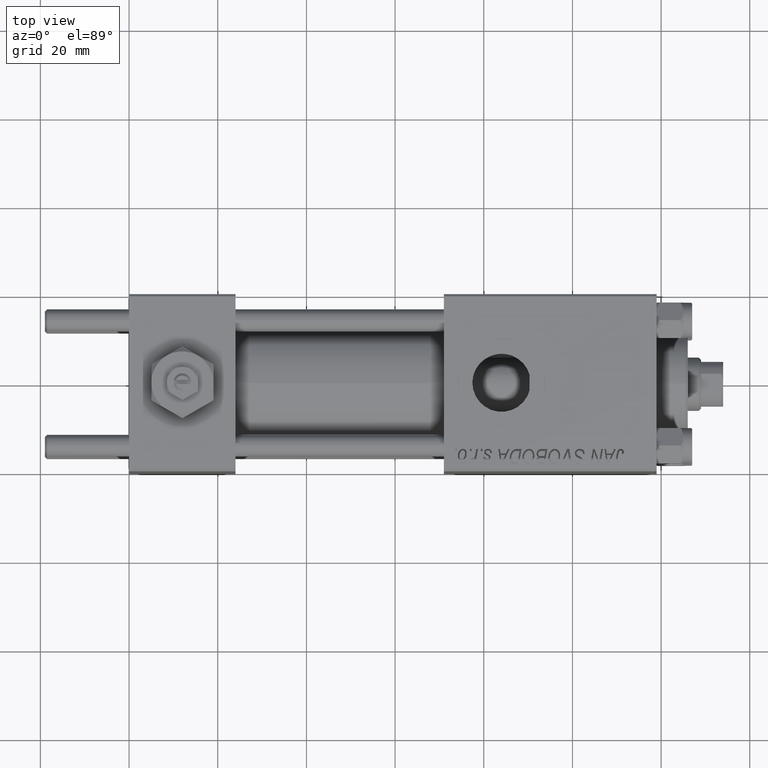
[diagram: clean part render]
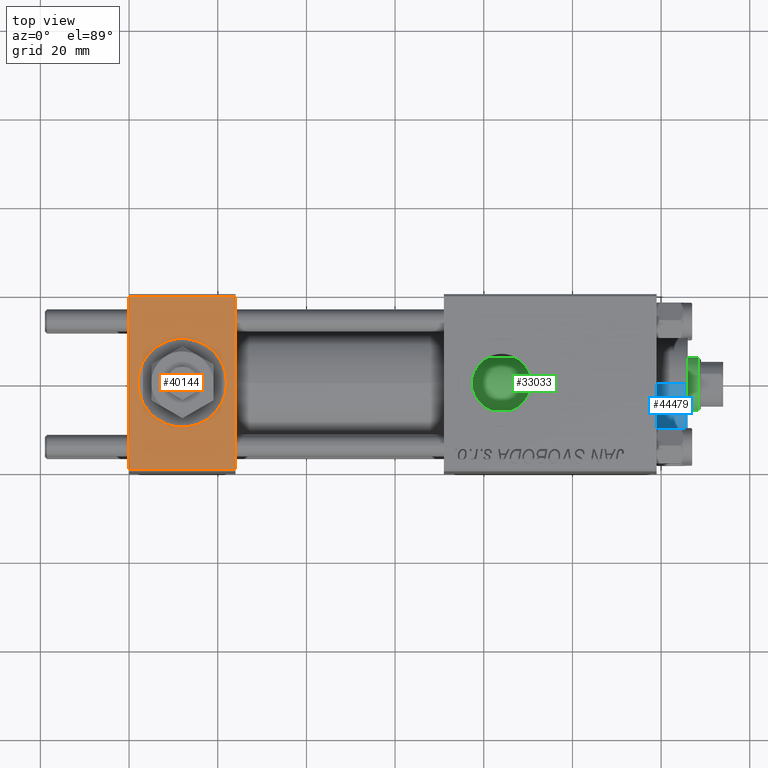
[diagram: same view with three faces highlighted in distinct colors, each labeled with its STEP entity id]
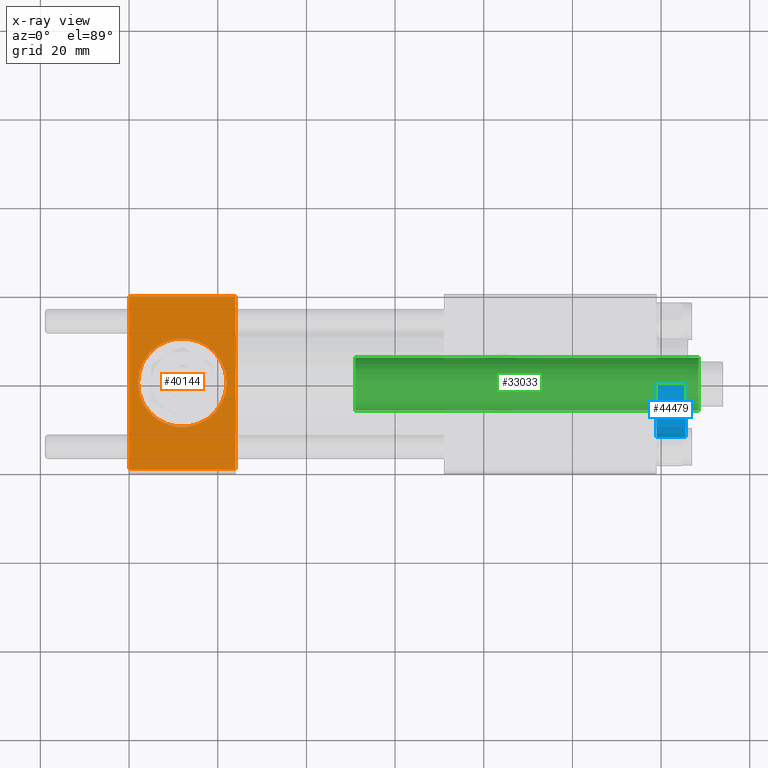
[diagram: x-ray of the same camera — body ghosted, the three highlighted faces saturated]
A machine part, top view with three faces highlighted in distinct colors.
The next image is the same camera in x-ray (body ghosted, the three faces saturated) — at least one of them is partly hidden behind the body in this view.
Their STEP definitions:

[orange] entity #40144 — the highlighted planar face has unit normal (0, 0, -1).
#170 = CARTESIAN_POINT ( 'NONE',  ( 12.00000000000000000, 1.540743955509788682E-30, 19.99999999999999645 ) ) ;
#1259 = VECTOR ( 'NONE', #7563, 1000.000000000000000 ) ;
#1360 = CARTESIAN_POINT ( 'NONE',  ( 22.00000000000000000, 1.540743955509788682E-30, 19.99999999999999645 ) ) ;
#1381 = VERTEX_POINT ( 'NONE', #15218 ) ;
#1753 = LINE ( 'NONE', #49410, #42932 ) ;
#1958 = ORIENTED_EDGE ( 'NONE', *, *, #22239, .T. ) ;
#2654 = EDGE_CURVE ( 'NONE', #40602, #40298, #23487, .T. ) ;
#4217 = CARTESIAN_POINT ( 'NONE',  ( 24.00000000000000000, 20.00000000000000000, 20.00000000000000000 ) ) ;
#5276 = CARTESIAN_POINT ( 'NONE',  ( 24.00000000000000000, -19.49999999999999289, 19.99999999999998934 ) ) ;
#5587 = EDGE_CURVE ( 'NONE', #6164, #38488, #21077, .T. ) ;
#6164 = VERTEX_POINT ( 'NONE', #1360 ) ;
#7108 = AXIS2_PLACEMENT_3D ( 'NONE', #15185, #10507, #10763 ) ;
#7563 = DIRECTION ( 'NONE',  ( 1.000000000000000000, 0.000000000000000000, 0.000000000000000000 ) ) ;
#8260 = DIRECTION ( 'NONE',  ( 0.000000000000000000, 0.000000000000000000, 1.000000000000000000 ) ) ;
#10507 = DIRECTION ( 'NONE',  ( 0.000000000000000000, 2.602085213965210149E-16, -1.000000000000000000 ) ) ;
#10763 = DIRECTION ( 'NONE',  ( 0.000000000000000000, 1.000000000000000000, 2.602085213965210149E-16 ) ) ;
#11901 = CARTESIAN_POINT ( 'NONE',  ( 12.00000000000000000, 1.540743955509788682E-30, 19.99999999999999645 ) ) ;
#13389 = AXIS2_PLACEMENT_3D ( 'NONE', #170, #23865, #43649 ) ;
#15185 = CARTESIAN_POINT ( 'NONE',  ( 24.00000000000000000, 20.00000000000000000, 20.00000000000000000 ) ) ;
#15218 = CARTESIAN_POINT ( 'NONE',  ( 0.000000000000000000, 19.50000000000000000, 20.00000000000000000 ) ) ;
#16433 = ORIENTED_EDGE ( 'NONE', *, *, #5587, .F. ) ;
#16506 = EDGE_CURVE ( 'NONE', #23597, #40298, #46110, .T. ) ;
#20220 = AXIS2_PLACEMENT_3D ( 'NONE', #11901, #8260, #27784 ) ;
#21077 = CIRCLE ( 'NONE', #20220, 9.999999999999998224 ) ;
#22226 = FACE_BOUND ( 'NONE', #44798, .T. ) ;
#22239 = EDGE_CURVE ( 'NONE', #40602, #1381, #33360, .T. ) ;
#23386 = CIRCLE ( 'NONE', #13389, 9.999999999999998224 ) ;
#23487 = LINE ( 'NONE', #4217, #33415 ) ;
#23597 = VERTEX_POINT ( 'NONE', #44004 ) ;
#23865 = DIRECTION ( 'NONE',  ( 0.000000000000000000, 0.000000000000000000, 1.000000000000000000 ) ) ;
#23981 = EDGE_CURVE ( 'NONE', #1381, #23597, #1753, .T. ) ;
#25469 = VECTOR ( 'NONE', #30458, 1000.000000000000000 ) ;
#27353 = CARTESIAN_POINT ( 'NONE',  ( 24.00000000000000000, 19.50000000000000000, 20.00000000000000000 ) ) ;
#27784 = DIRECTION ( 'NONE',  ( 1.000000000000000000, 0.000000000000000000, 0.000000000000000000 ) ) ;
#29950 = CARTESIAN_POINT ( 'NONE',  ( 0.000000000000000000, 19.50000000000000000, 20.00000000000000000 ) ) ;
#30220 = ORIENTED_EDGE ( 'NONE', *, *, #16506, .T. ) ;
#30458 = DIRECTION ( 'NONE',  ( -1.000000000000000000, 0.000000000000000000, 0.000000000000000000 ) ) ;
#33360 = LINE ( 'NONE', #29950, #25469 ) ;
#33415 = VECTOR ( 'NONE', #35963, 1000.000000000000000 ) ;
#34365 = CARTESIAN_POINT ( 'NONE',  ( 24.00000000000000000, -19.49999999999999289, 19.99999999999998934 ) ) ;
#34731 = EDGE_CURVE ( 'NONE', #38488, #6164, #23386, .T. ) ;
#35678 = CARTESIAN_POINT ( 'NONE',  ( 2.000000000000003553, 1.224646799147354440E-15, 19.99999999999999645 ) ) ;
#35963 = DIRECTION ( 'NONE',  ( 0.000000000000000000, -1.000000000000000000, -2.602085213965210149E-16 ) ) ;
#37178 = ORIENTED_EDGE ( 'NONE', *, *, #34731, .F. ) ;
#37261 = EDGE_LOOP ( 'NONE', ( #43402, #30220, #44796, #1958 ) ) ;
#38488 = VERTEX_POINT ( 'NONE', #35678 ) ;
#40144 = ADVANCED_FACE ( 'NONE', ( #22226, #50615 ), #50874, .F. ) ;
#40298 = VERTEX_POINT ( 'NONE', #5276 ) ;
#40602 = VERTEX_POINT ( 'NONE', #27353 ) ;
#42932 = VECTOR ( 'NONE', #49667, 1000.000000000000000 ) ;
#43402 = ORIENTED_EDGE ( 'NONE', *, *, #23981, .T. ) ;
#43649 = DIRECTION ( 'NONE',  ( 1.000000000000000000, 0.000000000000000000, 0.000000000000000000 ) ) ;
#44004 = CARTESIAN_POINT ( 'NONE',  ( 0.000000000000000000, -19.49999999999999289, 19.99999999999998934 ) ) ;
#44796 = ORIENTED_EDGE ( 'NONE', *, *, #2654, .F. ) ;
#44798 = EDGE_LOOP ( 'NONE', ( #16433, #37178 ) ) ;
#46110 = LINE ( 'NONE', #34365, #1259 ) ;
#49410 = CARTESIAN_POINT ( 'NONE',  ( 0.000000000000000000, 20.00000000000000000, 20.00000000000000000 ) ) ;
#49667 = DIRECTION ( 'NONE',  ( 0.000000000000000000, -1.000000000000000000, -2.602085213965210149E-16 ) ) ;
#50615 = FACE_OUTER_BOUND ( 'NONE', #37261, .T. ) ;
#50874 = PLANE ( 'NONE',  #7108 ) ;

[blue] entity #44479 — the highlighted cylindrical surface (partial cylindrical patch) has radius 12 mm, axis along (-1, -0, 0).
#1080 = ORIENTED_EDGE ( 'NONE', *, *, #30722, .T. ) ;
#1804 = LINE ( 'NONE', #22346, #30349 ) ;
#3770 = CARTESIAN_POINT ( 'NONE',  ( 0.000000000000000000, 0.000000000000000000, 35.70000000000000284 ) ) ;
#3822 = EDGE_LOOP ( 'NONE', ( #8703, #33180, #10283, #1080 ) ) ;
#6365 = CARTESIAN_POINT ( 'NONE',  ( 0.000000000000000000, 0.000000000000000000, 28.69999999999999929 ) ) ;
#6776 = CARTESIAN_POINT ( 'NONE',  ( 0.000000000000000000, 0.000000000000000000, 35.19999999999999574 ) ) ;
#8703 = ORIENTED_EDGE ( 'NONE', *, *, #43319, .F. ) ;
#10283 = ORIENTED_EDGE ( 'NONE', *, *, #39951, .T. ) ;
#11574 = CYLINDRICAL_SURFACE ( 'NONE', #17961, 12.00000000000000178 ) ;
#14223 = CARTESIAN_POINT ( 'NONE',  ( 12.00000000000000178, 1.469576158976824144E-15, 28.69999999999999929 ) ) ;
#17575 = DIRECTION ( 'NONE',  ( 1.000000000000000000, 0.000000000000000000, 0.000000000000000000 ) ) ;
#17961 = AXIS2_PLACEMENT_3D ( 'NONE', #3770, #31611, #32126 ) ;
#18253 = AXIS2_PLACEMENT_3D ( 'NONE', #6365, #33194, #17575 ) ;
#18626 = LINE ( 'NONE', #47014, #21235 ) ;
#19827 = VERTEX_POINT ( 'NONE', #31684 ) ;
#21235 = VECTOR ( 'NONE', #22793, 1000.000000000000000 ) ;
#22346 = CARTESIAN_POINT ( 'NONE',  ( 12.00000000000000178, 1.469576158976824144E-15, 35.70000000000000284 ) ) ;
#22793 = DIRECTION ( 'NONE',  ( -0.000000000000000000, -0.000000000000000000, -1.000000000000000000 ) ) ;
#23816 = FACE_OUTER_BOUND ( 'NONE', #3822, .T. ) ;
#24053 = CARTESIAN_POINT ( 'NONE',  ( -12.00000000000000178, 0.000000000000000000, 28.69999999999999929 ) ) ;
#28203 = VERTEX_POINT ( 'NONE', #24053 ) ;
#30349 = VECTOR ( 'NONE', #45798, 1000.000000000000000 ) ;
#30460 = DIRECTION ( 'NONE',  ( 1.000000000000000000, 0.000000000000000000, 0.000000000000000000 ) ) ;
#30722 = EDGE_CURVE ( 'NONE', #28203, #46316, #31521, .T. ) ;
#30723 = DIRECTION ( 'NONE',  ( 0.000000000000000000, 0.000000000000000000, -1.000000000000000000 ) ) ;
#31212 = CIRCLE ( 'NONE', #32037, 12.00000000000000178 ) ;
#31521 = CIRCLE ( 'NONE', #18253, 12.00000000000000178 ) ;
#31611 = DIRECTION ( 'NONE',  ( -0.000000000000000000, -0.000000000000000000, -1.000000000000000000 ) ) ;
#31684 = CARTESIAN_POINT ( 'NONE',  ( 12.00000000000000178, 1.469576158976824144E-15, 35.19999999999999574 ) ) ;
#32037 = AXIS2_PLACEMENT_3D ( 'NONE', #6776, #30723, #30460 ) ;
#32126 = DIRECTION ( 'NONE',  ( -1.000000000000000000, 0.000000000000000000, 0.000000000000000000 ) ) ;
#33180 = ORIENTED_EDGE ( 'NONE', *, *, #42986, .T. ) ;
#33194 = DIRECTION ( 'NONE',  ( 0.000000000000000000, 0.000000000000000000, 1.000000000000000000 ) ) ;
#38069 = VERTEX_POINT ( 'NONE', #47474 ) ;
#39951 = EDGE_CURVE ( 'NONE', #38069, #28203, #18626, .T. ) ;
#42986 = EDGE_CURVE ( 'NONE', #19827, #38069, #31212, .T. ) ;
#43319 = EDGE_CURVE ( 'NONE', #19827, #46316, #1804, .T. ) ;
#44479 = ADVANCED_FACE ( 'NONE', ( #23816 ), #11574, .T. ) ;
#45798 = DIRECTION ( 'NONE',  ( -0.000000000000000000, -0.000000000000000000, -1.000000000000000000 ) ) ;
#46316 = VERTEX_POINT ( 'NONE', #14223 ) ;
#47014 = CARTESIAN_POINT ( 'NONE',  ( -12.00000000000000178, 0.000000000000000000, 35.70000000000000284 ) ) ;
#47474 = CARTESIAN_POINT ( 'NONE',  ( -12.00000000000000178, 0.000000000000000000, 35.19999999999999574 ) ) ;

[green] entity #33033 — the highlighted cylindrical surface (edge-blend (fillet) strip) has radius 6 mm, axis along (-1, 0, 0).
#1627 = DIRECTION ( 'NONE',  ( -0.000000000000000000, -0.000000000000000000, -1.000000000000000000 ) ) ;
#1786 = DIRECTION ( 'NONE',  ( -0.000000000000000000, -0.000000000000000000, -1.000000000000000000 ) ) ;
#5377 = AXIS2_PLACEMENT_3D ( 'NONE', #18261, #50042, #14348 ) ;
#7001 = VERTEX_POINT ( 'NONE', #27469 ) ;
#7069 = ORIENTED_EDGE ( 'NONE', *, *, #38304, .T. ) ;
#8237 = EDGE_LOOP ( 'NONE', ( #34484, #40932, #10636, #7069 ) ) ;
#9147 = FACE_OUTER_BOUND ( 'NONE', #8237, .T. ) ;
#10636 = ORIENTED_EDGE ( 'NONE', *, *, #50946, .T. ) ;
#13586 = CARTESIAN_POINT ( 'NONE',  ( -6.000000000000000888, 0.000000000000000000, 104.5000000000000142 ) ) ;
#13692 = CIRCLE ( 'NONE', #5377, 6.000000000000000888 ) ;
#14348 = DIRECTION ( 'NONE',  ( 1.000000000000000000, 0.000000000000000000, 0.000000000000000000 ) ) ;
#16186 = CIRCLE ( 'NONE', #41956, 6.000000000000000888 ) ;
#17280 = EDGE_CURVE ( 'NONE', #20911, #23726, #37278, .T. ) ;
#18261 = CARTESIAN_POINT ( 'NONE',  ( 0.000000000000000000, 0.000000000000000000, 27.00000000000000000 ) ) ;
#20911 = VERTEX_POINT ( 'NONE', #26121 ) ;
#21117 = CARTESIAN_POINT ( 'NONE',  ( 0.000000000000000000, 0.000000000000000000, 105.0000000000000000 ) ) ;
#23265 = VERTEX_POINT ( 'NONE', #13586 ) ;
#23726 = VERTEX_POINT ( 'NONE', #45293 ) ;
#24168 = AXIS2_PLACEMENT_3D ( 'NONE', #21117, #39864, #25274 ) ;
#24441 = LINE ( 'NONE', #48669, #30607 ) ;
#25024 = CYLINDRICAL_SURFACE ( 'NONE', #24168, 6.000000000000000888 ) ;
#25274 = DIRECTION ( 'NONE',  ( -1.000000000000000000, 0.000000000000000000, 0.000000000000000000 ) ) ;
#26121 = CARTESIAN_POINT ( 'NONE',  ( 6.000000000000000888, 7.347880794884120722E-16, 104.5000000000000142 ) ) ;
#27469 = CARTESIAN_POINT ( 'NONE',  ( -6.000000000000000888, 0.000000000000000000, 27.00000000000000000 ) ) ;
#30607 = VECTOR ( 'NONE', #1786, 1000.000000000000000 ) ;
#33033 = ADVANCED_FACE ( 'NONE', ( #9147 ), #25024, .T. ) ;
#34484 = ORIENTED_EDGE ( 'NONE', *, *, #17280, .F. ) ;
#37278 = LINE ( 'NONE', #41937, #48689 ) ;
#38103 = EDGE_CURVE ( 'NONE', #20911, #23265, #16186, .T. ) ;
#38304 = EDGE_CURVE ( 'NONE', #7001, #23726, #13692, .T. ) ;
#39864 = DIRECTION ( 'NONE',  ( -0.000000000000000000, -0.000000000000000000, -1.000000000000000000 ) ) ;
#40150 = DIRECTION ( 'NONE',  ( 1.000000000000000000, 0.000000000000000000, 0.000000000000000000 ) ) ;
#40928 = DIRECTION ( 'NONE',  ( 0.000000000000000000, 0.000000000000000000, -1.000000000000000000 ) ) ;
#40932 = ORIENTED_EDGE ( 'NONE', *, *, #38103, .T. ) ;
#41937 = CARTESIAN_POINT ( 'NONE',  ( 6.000000000000000888, 7.347880794884120722E-16, 105.0000000000000000 ) ) ;
#41956 = AXIS2_PLACEMENT_3D ( 'NONE', #44598, #40928, #40150 ) ;
#44598 = CARTESIAN_POINT ( 'NONE',  ( 0.000000000000000000, 0.000000000000000000, 104.5000000000000142 ) ) ;
#45293 = CARTESIAN_POINT ( 'NONE',  ( 6.000000000000000888, 7.347880794884120722E-16, 27.00000000000000000 ) ) ;
#48669 = CARTESIAN_POINT ( 'NONE',  ( -6.000000000000000888, 0.000000000000000000, 105.0000000000000000 ) ) ;
#48689 = VECTOR ( 'NONE', #1627, 1000.000000000000000 ) ;
#50042 = DIRECTION ( 'NONE',  ( 0.000000000000000000, 0.000000000000000000, 1.000000000000000000 ) ) ;
#50946 = EDGE_CURVE ( 'NONE', #23265, #7001, #24441, .T. ) ;